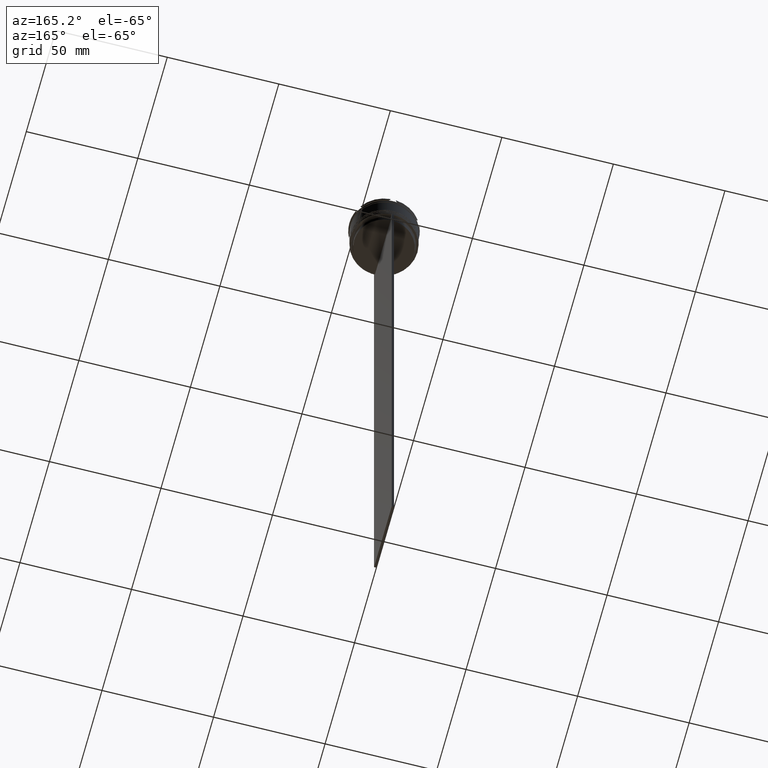
[diagram: clean part render]
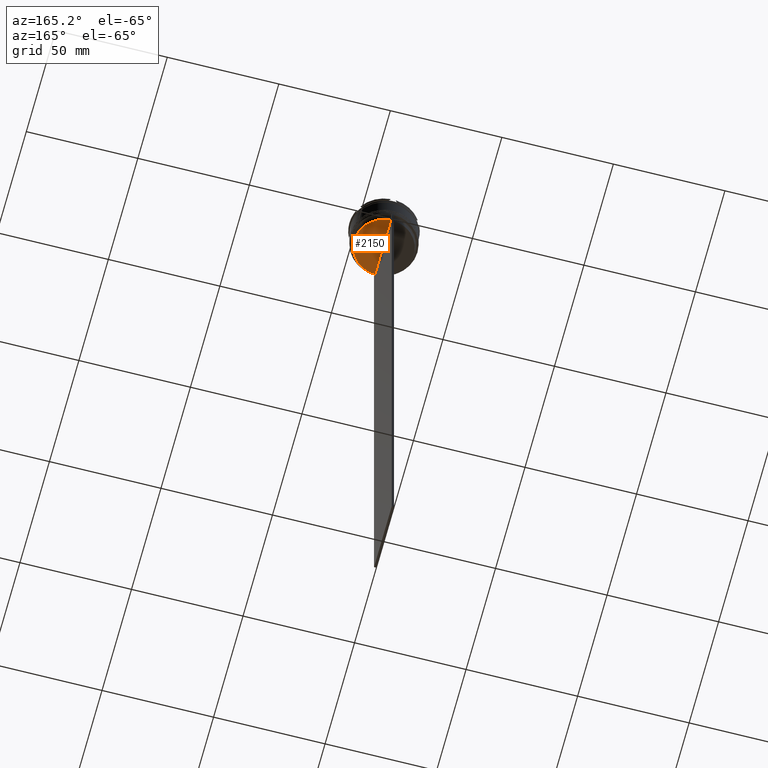
[diagram: same view with one face highlighted and labeled with its STEP entity id]
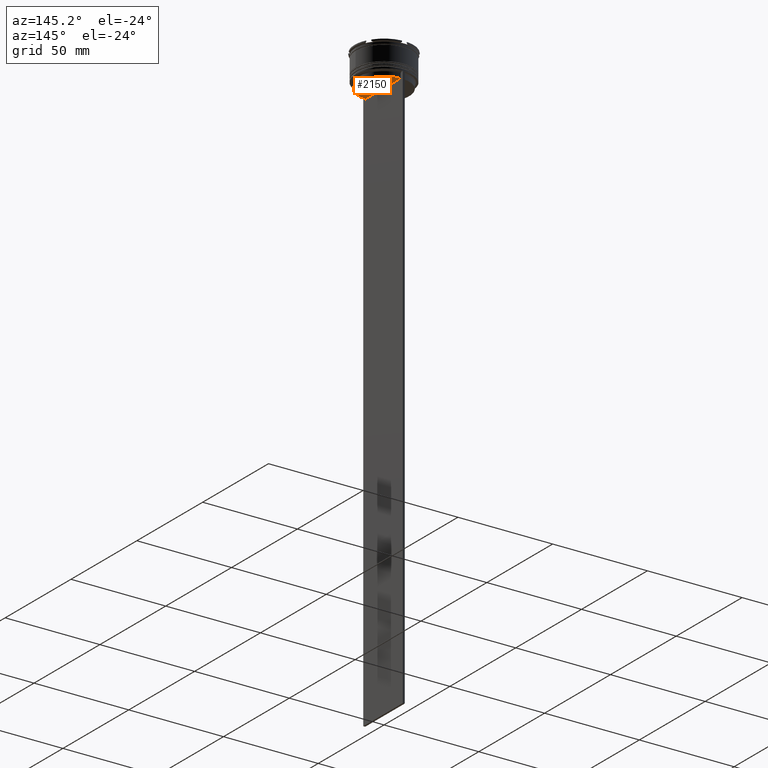
[diagram: same view with one face highlighted and labeled with its STEP entity id]
A machine part, auxiliary view. The second image highlights one B-rep face of the part: STEP entity #2150.
A second angle (auxiliary view) of the same face is appended — the face is thin or edge-on in the first view.
In plain terms, the highlighted planar face has unit normal (0, -0, 1).
Its self-contained STEP definition (entity closure, byte-faithful):
#155 = CARTESIAN_POINT ( 'NONE',  ( 0.5000000000000001110, 13.40000000000000391, -17.00000000000000000 ) ) ;
#183 = AXIS2_PLACEMENT_3D ( 'NONE', #1483, #359, #2377 ) ;
#220 = CARTESIAN_POINT ( 'NONE',  ( 0.5000000000000001110, 13.39066839257847086, -17.00000000000000000 ) ) ;
#247 = VERTEX_POINT ( 'NONE', #1677 ) ;
#359 = DIRECTION ( 'NONE',  ( -0.000000000000000000, -0.000000000000000000, 1.000000000000000000 ) ) ;
#390 = ORIENTED_EDGE ( 'NONE', *, *, #1667, .F. ) ;
#399 = DIRECTION ( 'NONE',  ( 1.000000000000000000, 0.000000000000000000, 0.000000000000000000 ) ) ;
#447 = ORIENTED_EDGE ( 'NONE', *, *, #1896, .F. ) ;
#475 = AXIS2_PLACEMENT_3D ( 'NONE', #2179, #1959, #399 ) ;
#611 = CARTESIAN_POINT ( 'NONE',  ( 0.000000000000000000, 13.40000000000000391, -17.00000000000000000 ) ) ;
#741 = ORIENTED_EDGE ( 'NONE', *, *, #1188, .F. ) ;
#845 = VERTEX_POINT ( 'NONE', #220 ) ;
#1017 = FACE_OUTER_BOUND ( 'NONE', #1304, .T. ) ;
#1038 = CARTESIAN_POINT ( 'NONE',  ( 13.40000000000000391, 0.000000000000000000, -17.00000000000000000 ) ) ;
#1115 = AXIS2_PLACEMENT_3D ( 'NONE', #611, #1240, #1925 ) ;
#1188 = EDGE_CURVE ( 'NONE', #247, #2413, #1732, .T. ) ;
#1240 = DIRECTION ( 'NONE',  ( 0.000000000000000000, -0.000000000000000000, 1.000000000000000000 ) ) ;
#1268 = LINE ( 'NONE', #155, #2567 ) ;
#1304 = EDGE_LOOP ( 'NONE', ( #390, #447, #741 ) ) ;
#1460 = PLANE ( 'NONE',  #1115 ) ;
#1483 = CARTESIAN_POINT ( 'NONE',  ( 0.000000000000000000, 0.000000000000000000, -17.00000000000000000 ) ) ;
#1494 = CIRCLE ( 'NONE', #183, 13.40000000000000391 ) ;
#1667 = EDGE_CURVE ( 'NONE', #845, #247, #1268, .T. ) ;
#1677 = CARTESIAN_POINT ( 'NONE',  ( 0.5000000000000001110, -13.39066839257847086, -17.00000000000000000 ) ) ;
#1732 = CIRCLE ( 'NONE', #475, 13.40000000000000391 ) ;
#1896 = EDGE_CURVE ( 'NONE', #2413, #845, #1494, .T. ) ;
#1925 = DIRECTION ( 'NONE',  ( 1.000000000000000000, 0.000000000000000000, 0.000000000000000000 ) ) ;
#1959 = DIRECTION ( 'NONE',  ( -0.000000000000000000, -0.000000000000000000, 1.000000000000000000 ) ) ;
#2150 = ADVANCED_FACE ( 'NONE', ( #1017 ), #1460, .F. ) ;
#2153 = DIRECTION ( 'NONE',  ( 0.000000000000000000, -1.000000000000000000, 0.000000000000000000 ) ) ;
#2179 = CARTESIAN_POINT ( 'NONE',  ( 0.000000000000000000, 0.000000000000000000, -17.00000000000000000 ) ) ;
#2377 = DIRECTION ( 'NONE',  ( 1.000000000000000000, 0.000000000000000000, 0.000000000000000000 ) ) ;
#2413 = VERTEX_POINT ( 'NONE', #1038 ) ;
#2567 = VECTOR ( 'NONE', #2153, 1000.000000000000000 ) ;